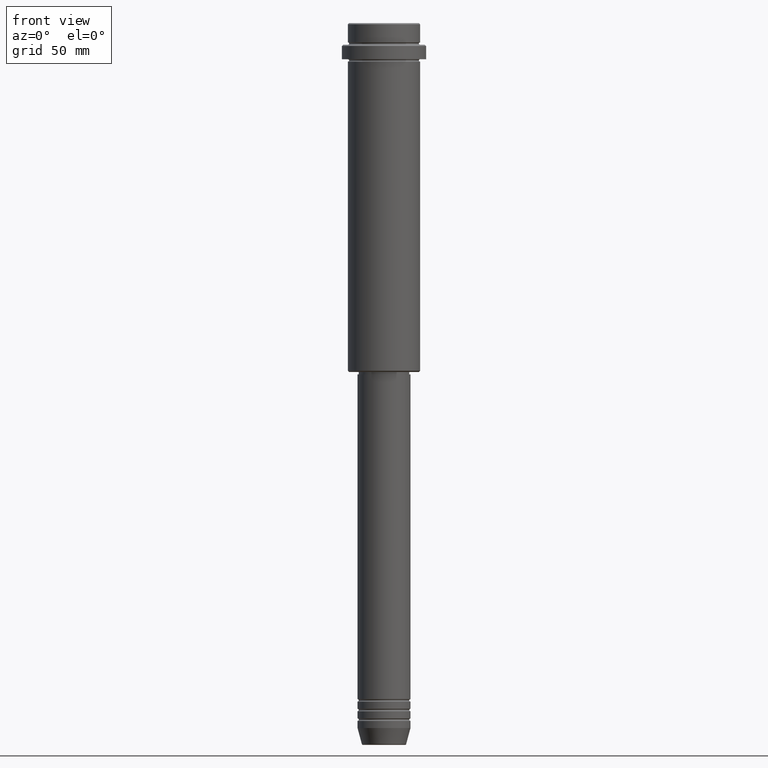
[diagram: clean part render]
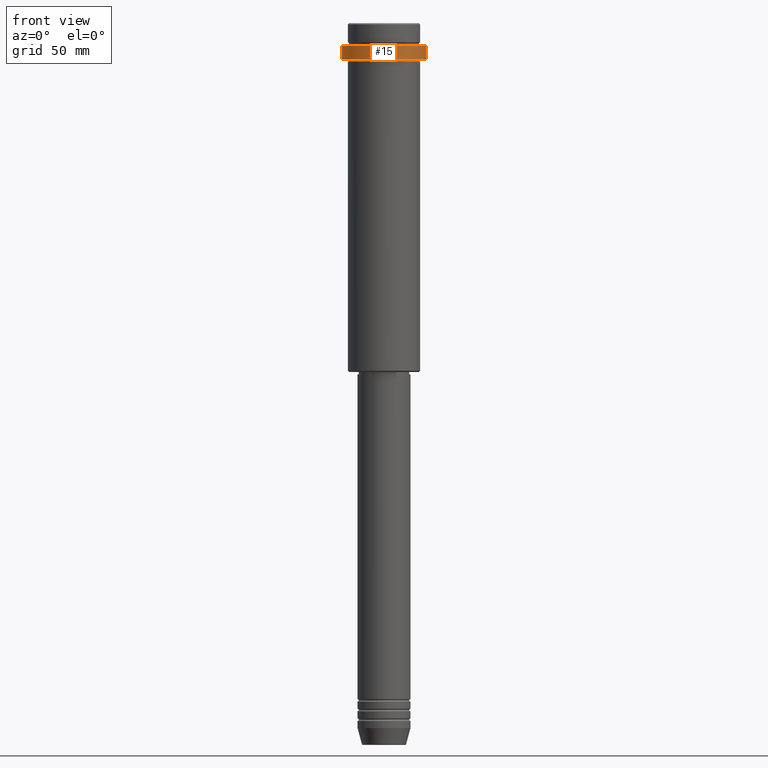
[diagram: same view with one face highlighted and labeled with its STEP entity id]
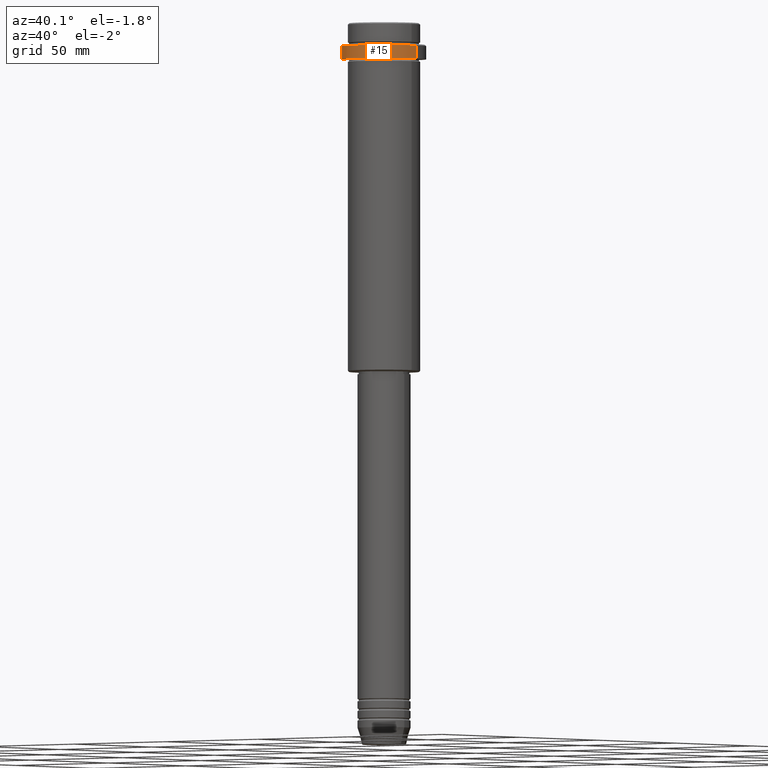
[diagram: same view with one face highlighted and labeled with its STEP entity id]
A machine part, front view. The second image highlights one B-rep face of the part: STEP entity #15.
A second angle (auxiliary view) of the same face is appended — the face is thin or edge-on in the first view.
In plain terms, the highlighted cylindrical surface (partial cylindrical patch) has radius 17.5 mm, axis along (-0, -0, 1).
Its self-contained STEP definition (entity closure, byte-faithful):
#4 = LINE ( 'NONE', #442, #1004 ) ;
#15 = ADVANCED_FACE ( 'NONE', ( #1196 ), #105, .T. ) ;
#38 = DIRECTION ( 'NONE',  ( 0.000000000000000000, 0.000000000000000000, -1.000000000000000000 ) ) ;
#51 = VERTEX_POINT ( 'NONE', #1021 ) ;
#81 = DIRECTION ( 'NONE',  ( -0.000000000000000000, -0.000000000000000000, 1.000000000000000000 ) ) ;
#101 = ORIENTED_EDGE ( 'NONE', *, *, #1076, .T. ) ;
#105 = CYLINDRICAL_SURFACE ( 'NONE', #719, 17.50000000000000000 ) ;
#163 = CARTESIAN_POINT ( 'NONE',  ( 17.50000000000000000, 0.000000000000000000, 0.000000000000000000 ) ) ;
#193 = CIRCLE ( 'NONE', #728, 17.50000000000000000 ) ;
#196 = ORIENTED_EDGE ( 'NONE', *, *, #827, .T. ) ;
#205 = ORIENTED_EDGE ( 'NONE', *, *, #1112, .T. ) ;
#228 = EDGE_LOOP ( 'NONE', ( #433, #205, #101, #196 ) ) ;
#248 = CARTESIAN_POINT ( 'NONE',  ( -17.50000000000000000, 2.143131898507868248E-15, -9.500000000000028422 ) ) ;
#285 = CIRCLE ( 'NONE', #608, 17.50000000000000000 ) ;
#299 = CARTESIAN_POINT ( 'NONE',  ( -17.50000000000000000, 2.143131898507868248E-15, -15.00000000000000178 ) ) ;
#304 = DIRECTION ( 'NONE',  ( -0.000000000000000000, -0.000000000000000000, 1.000000000000000000 ) ) ;
#432 = DIRECTION ( 'NONE',  ( -0.000000000000000000, -0.000000000000000000, 1.000000000000000000 ) ) ;
#433 = ORIENTED_EDGE ( 'NONE', *, *, #600, .F. ) ;
#442 = CARTESIAN_POINT ( 'NONE',  ( -17.50000000000000000, 2.143131898507868248E-15, 0.000000000000000000 ) ) ;
#544 = CARTESIAN_POINT ( 'NONE',  ( 0.000000000000000000, 0.000000000000000000, 0.000000000000000000 ) ) ;
#592 = DIRECTION ( 'NONE',  ( 1.000000000000000000, 0.000000000000000000, 0.000000000000000000 ) ) ;
#600 = EDGE_CURVE ( 'NONE', #1134, #856, #4, .T. ) ;
#608 = AXIS2_PLACEMENT_3D ( 'NONE', #882, #38, #1007 ) ;
#719 = AXIS2_PLACEMENT_3D ( 'NONE', #544, #432, #592 ) ;
#728 = AXIS2_PLACEMENT_3D ( 'NONE', #1385, #304, #957 ) ;
#827 = EDGE_CURVE ( 'NONE', #1155, #856, #285, .T. ) ;
#856 = VERTEX_POINT ( 'NONE', #248 ) ;
#882 = CARTESIAN_POINT ( 'NONE',  ( 0.000000000000000000, 0.000000000000000000, -9.500000000000028422 ) ) ;
#936 = LINE ( 'NONE', #163, #1212 ) ;
#957 = DIRECTION ( 'NONE',  ( 1.000000000000000000, 0.000000000000000000, 0.000000000000000000 ) ) ;
#1004 = VECTOR ( 'NONE', #1313, 1000.000000000000000 ) ;
#1007 = DIRECTION ( 'NONE',  ( 1.000000000000000000, 0.000000000000000000, 0.000000000000000000 ) ) ;
#1021 = CARTESIAN_POINT ( 'NONE',  ( 17.50000000000000000, 0.000000000000000000, -15.00000000000000178 ) ) ;
#1049 = CARTESIAN_POINT ( 'NONE',  ( 17.50000000000000000, 0.000000000000000000, -9.500000000000028422 ) ) ;
#1076 = EDGE_CURVE ( 'NONE', #51, #1155, #936, .T. ) ;
#1112 = EDGE_CURVE ( 'NONE', #1134, #51, #193, .T. ) ;
#1134 = VERTEX_POINT ( 'NONE', #299 ) ;
#1155 = VERTEX_POINT ( 'NONE', #1049 ) ;
#1196 = FACE_OUTER_BOUND ( 'NONE', #228, .T. ) ;
#1212 = VECTOR ( 'NONE', #81, 1000.000000000000000 ) ;
#1313 = DIRECTION ( 'NONE',  ( -0.000000000000000000, -0.000000000000000000, 1.000000000000000000 ) ) ;
#1385 = CARTESIAN_POINT ( 'NONE',  ( 0.000000000000000000, 0.000000000000000000, -15.00000000000000178 ) ) ;